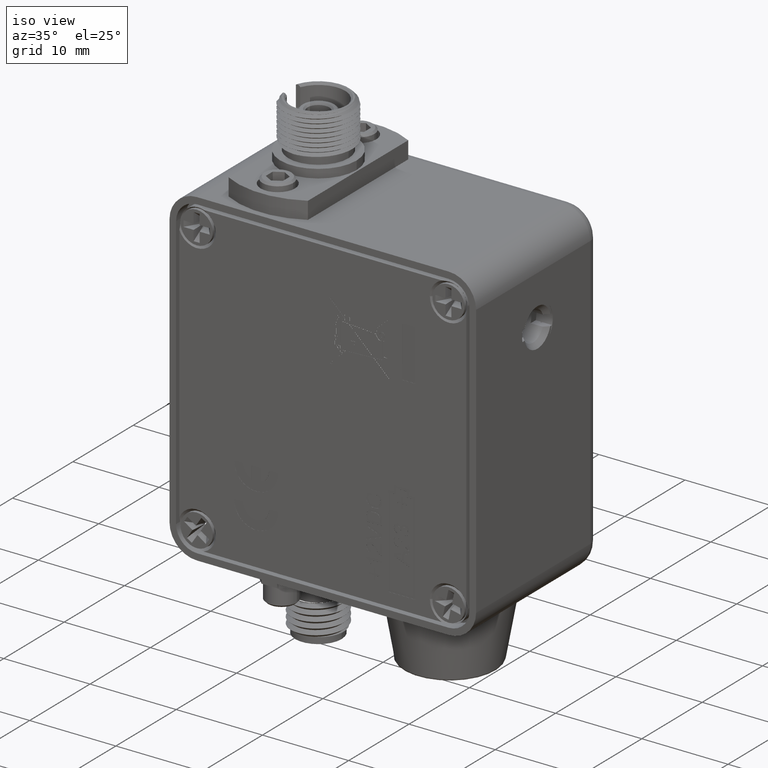
[diagram: clean part render]
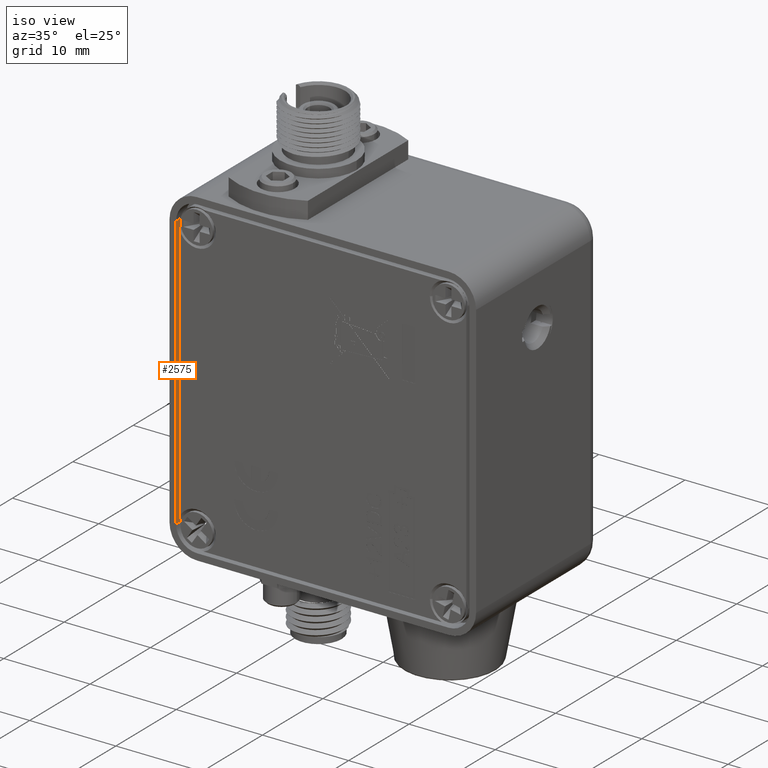
[diagram: same view with one face highlighted and labeled with its STEP entity id]
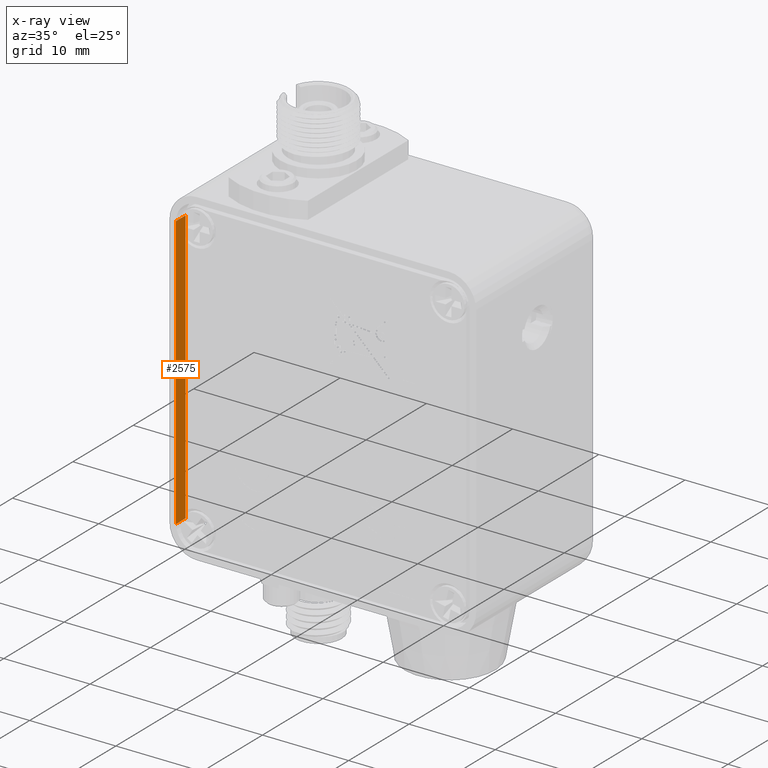
[diagram: x-ray of the same camera — body ghosted, the highlighted face saturated]
A machine part, iso view. The second image highlights one B-rep face of the part: STEP entity #2575.
The next image is the same camera in x-ray: the body ghosted, the highlighted face saturated — about 0% of this face is hidden behind the body in this view.
In plain terms, the highlighted planar face has unit normal (1, 0, 0).
Its self-contained STEP definition (entity closure, byte-faithful):
#2519 = VERTEX_POINT ( 'NONE', #25528 ) ;
#2527 = EDGE_CURVE ( 'NONE', #24782, #2519, #25517, .T. ) ;
#2569 = EDGE_CURVE ( 'NONE', #24794, #2679, #25778, .T. ) ;
#2575 = ADVANCED_FACE ( 'NONE', ( #25771 ), #25736, .T. ) ;
#2578 = EDGE_LOOP ( 'NONE', ( #2751, #2760, #2762, #2766, #2637 ) ) ;
#2637 = ORIENTED_EDGE ( 'NONE', *, *, #2641, .T. ) ;
#2641 = EDGE_CURVE ( 'NONE', #2519, #2753, #25986, .T. ) ;
#2679 = VERTEX_POINT ( 'NONE', #26293 ) ;
#2751 = ORIENTED_EDGE ( 'NONE', *, *, #2752, .F. ) ;
#2752 = EDGE_CURVE ( 'NONE', #2679, #2753, #26465, .T. ) ;
#2753 = VERTEX_POINT ( 'NONE', #26460 ) ;
#2760 = ORIENTED_EDGE ( 'NONE', *, *, #2569, .F. ) ;
#2762 = ORIENTED_EDGE ( 'NONE', *, *, #24789, .T. ) ;
#2766 = ORIENTED_EDGE ( 'NONE', *, *, #2527, .T. ) ;
#24782 = VERTEX_POINT ( 'NONE', #64121 ) ;
#24789 = EDGE_CURVE ( 'NONE', #24794, #24782, #64150, .T. ) ;
#24794 = VERTEX_POINT ( 'NONE', #64146 ) ;
#25511 = DIRECTION ( 'NONE',  ( -1.092739197465705900E-016, 0.0000000000000000000, 1.000000000000000000 ) ) ;
#25513 = VECTOR ( 'NONE', #25511, 39.37007874015748100 ) ;
#25514 = CARTESIAN_POINT ( 'NONE',  ( -0.6699999999999998200, 0.06250000000000000000, -1.375000000000000000 ) ) ;
#25517 = LINE ( 'NONE', #25514, #25513 ) ;
#25528 = CARTESIAN_POINT ( 'NONE',  ( -0.6699999999999999300, 0.06250000000000000000, -0.1250000000000004400 ) ) ;
#25733 = AXIS2_PLACEMENT_3D ( 'NONE', #25833, #25832, #25831 ) ;
#25736 = PLANE ( 'NONE',  #25733 ) ;
#25771 = FACE_OUTER_BOUND ( 'NONE', #2578, .T. ) ;
#25773 = DIRECTION ( 'NONE',  ( 0.0000000000000000000, -1.000000000000000000, 0.0000000000000000000 ) ) ;
#25775 = VECTOR ( 'NONE', #25773, 39.37007874015748100 ) ;
#25777 = CARTESIAN_POINT ( 'NONE',  ( -0.6699999999999998200, 0.06250000000000000000, -1.375000000000000000 ) ) ;
#25778 = LINE ( 'NONE', #25777, #25775 ) ;
#25831 = DIRECTION ( 'NONE',  ( 1.092739197465705900E-016, 0.0000000000000000000, -1.000000000000000000 ) ) ;
#25832 = DIRECTION ( 'NONE',  ( 1.000000000000000000, 0.0000000000000000000, 1.092739197465705900E-016 ) ) ;
#25833 = CARTESIAN_POINT ( 'NONE',  ( -0.6699999999999998200, 0.06250000000000000000, -1.375000000000000000 ) ) ;
#25981 = DIRECTION ( 'NONE',  ( 0.0000000000000000000, -1.000000000000000000, 0.0000000000000000000 ) ) ;
#25982 = VECTOR ( 'NONE', #25981, 39.37007874015748100 ) ;
#25985 = CARTESIAN_POINT ( 'NONE',  ( -0.6699999999999999300, 0.06250000000000000000, -0.1250000000000004400 ) ) ;
#25986 = LINE ( 'NONE', #25985, #25982 ) ;
#26293 = CARTESIAN_POINT ( 'NONE',  ( -0.6699999999999998200, 0.0000000000000000000, -1.375000000000000000 ) ) ;
#26460 = CARTESIAN_POINT ( 'NONE',  ( -0.6699999999999999300, 0.0000000000000000000, -0.1250000000000004400 ) ) ;
#26461 = DIRECTION ( 'NONE',  ( -1.092739197465705900E-016, 0.0000000000000000000, 1.000000000000000000 ) ) ;
#26462 = VECTOR ( 'NONE', #26461, 39.37007874015748100 ) ;
#26464 = CARTESIAN_POINT ( 'NONE',  ( -0.6699999999999998200, 0.0000000000000000000, -1.375000000000000000 ) ) ;
#26465 = LINE ( 'NONE', #26464, #26462 ) ;
#64121 = CARTESIAN_POINT ( 'NONE',  ( -0.6699999999999999300, 0.06250000000000000000, -0.5174999999999998500 ) ) ;
#64146 = CARTESIAN_POINT ( 'NONE',  ( -0.6699999999999998200, 0.06250000000000000000, -1.375000000000000000 ) ) ;
#64147 = DIRECTION ( 'NONE',  ( -1.092739197465705900E-016, 0.0000000000000000000, 1.000000000000000000 ) ) ;
#64148 = VECTOR ( 'NONE', #64147, 39.37007874015748100 ) ;
#64149 = CARTESIAN_POINT ( 'NONE',  ( -0.6699999999999998200, 0.06250000000000000000, -1.375000000000000000 ) ) ;
#64150 = LINE ( 'NONE', #64149, #64148 ) ;